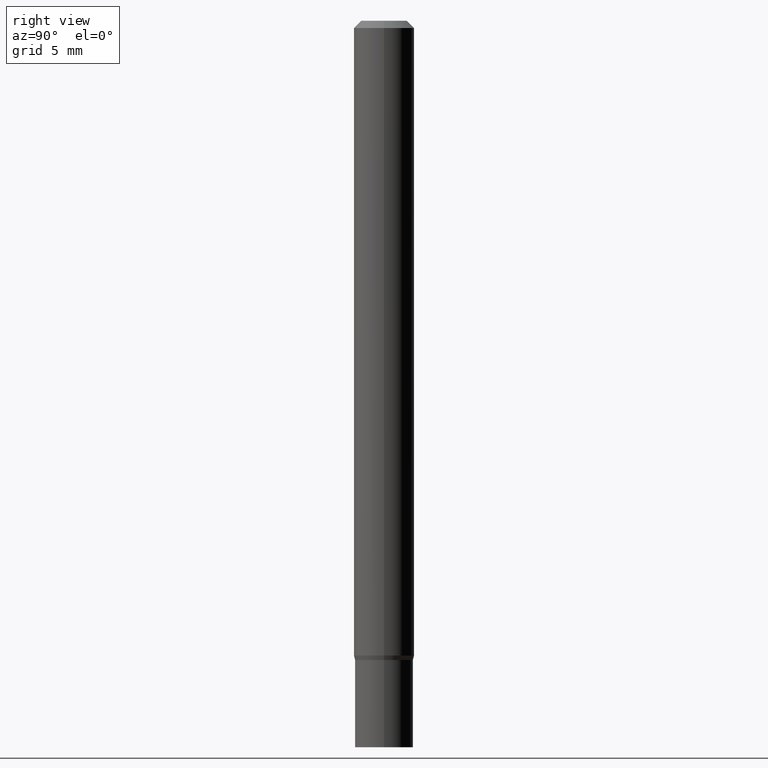
[diagram: clean part render]
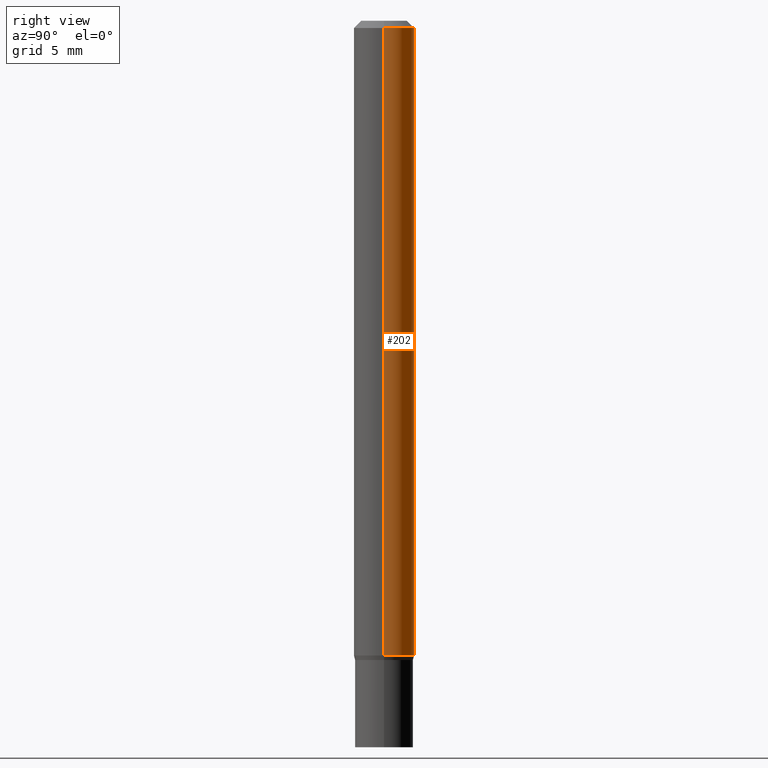
[diagram: same view with one face highlighted and labeled with its STEP entity id]
A machine part, right view. The second image highlights one B-rep face of the part: STEP entity #202.
In plain terms, the highlighted cylindrical surface (edge-blend (fillet) strip) has radius 1.5875 mm, axis along (-0, 0, 1).
Its self-contained STEP definition (entity closure, byte-faithful):
#10 = AXIS2_PLACEMENT_3D ( 'NONE', #438, #114, #263 ) ;
#39 = VECTOR ( 'NONE', #411, 39.37007874015748143 ) ;
#50 = CYLINDRICAL_SURFACE ( 'NONE', #294, 0.06250000000000000000 ) ;
#59 = EDGE_CURVE ( 'NONE', #363, #117, #364, .T. ) ;
#61 = CARTESIAN_POINT ( 'NONE',  ( 0.06250000000000000000, -5.012614570252739972E-15, -1.310669872981077733 ) ) ;
#62 = AXIS2_PLACEMENT_3D ( 'NONE', #274, #280, #232 ) ;
#77 = DIRECTION ( 'NONE',  ( -2.445468806185136877E-29, 3.491481338843145188E-15, 1.000000000000000000 ) ) ;
#114 = DIRECTION ( 'NONE',  ( -2.445468806185136597E-29, 3.491481338843145583E-15, 1.000000000000000000 ) ) ;
#117 = VERTEX_POINT ( 'NONE', #344 ) ;
#129 = LINE ( 'NONE', #132, #39 ) ;
#132 = CARTESIAN_POINT ( 'NONE',  ( 0.06250000000000000000, -4.364351673553916694E-16, 3.047610484872459871E-30 ) ) ;
#138 = LINE ( 'NONE', #424, #410 ) ;
#159 = EDGE_CURVE ( 'NONE', #361, #363, #129, .T. ) ;
#172 = CARTESIAN_POINT ( 'NONE',  ( 0.06250000000000000000, -4.888073874380388472E-16, -0.01499999999999999944 ) ) ;
#175 = EDGE_CURVE ( 'NONE', #361, #337, #357, .T. ) ;
#202 = ADVANCED_FACE ( 'NONE', ( #241 ), #50, .T. ) ;
#232 = DIRECTION ( 'NONE',  ( 1.000000000000000000, -6.982962677686262766E-15, 0.000000000000000000 ) ) ;
#241 = FACE_OUTER_BOUND ( 'NONE', #418, .T. ) ;
#263 = DIRECTION ( 'NONE',  ( 1.000000000000000000, -6.982962677686266711E-15, 0.000000000000000000 ) ) ;
#274 = CARTESIAN_POINT ( 'NONE',  ( 3.205202289581861151E-29, -4.576179402897349091E-15, -1.310669872981077733 ) ) ;
#275 = ORIENTED_EDGE ( 'NONE', *, *, #159, .F. ) ;
#280 = DIRECTION ( 'NONE',  ( -2.445468806185136597E-29, 3.491481338843145583E-15, 1.000000000000000000 ) ) ;
#294 = AXIS2_PLACEMENT_3D ( 'NONE', #384, #379, #349 ) ;
#330 = ORIENTED_EDGE ( 'NONE', *, *, #407, .T. ) ;
#337 = VERTEX_POINT ( 'NONE', #429 ) ;
#344 = CARTESIAN_POINT ( 'NONE',  ( -0.06250000000000000000, -1.870186601639935272E-15, -0.01499999999999999944 ) ) ;
#349 = DIRECTION ( 'NONE',  ( 1.000000000000000000, -6.982962677686266711E-15, 4.876176775795935793E-29 ) ) ;
#350 = ORIENTED_EDGE ( 'NONE', *, *, #59, .F. ) ;
#357 = CIRCLE ( 'NONE', #62, 0.06250000000000000000 ) ;
#361 = VERTEX_POINT ( 'NONE', #61 ) ;
#363 = VERTEX_POINT ( 'NONE', #172 ) ;
#364 = CIRCLE ( 'NONE', #10, 0.06250000000000000000 ) ;
#379 = DIRECTION ( 'NONE',  ( -2.445468806185136597E-29, 3.491481338843145583E-15, 1.000000000000000000 ) ) ;
#381 = ORIENTED_EDGE ( 'NONE', *, *, #175, .T. ) ;
#384 = CARTESIAN_POINT ( 'NONE',  ( 0.000000000000000000, 0.000000000000000000, 0.000000000000000000 ) ) ;
#407 = EDGE_CURVE ( 'NONE', #337, #117, #138, .T. ) ;
#410 = VECTOR ( 'NONE', #77, 39.37007874015748143 ) ;
#411 = DIRECTION ( 'NONE',  ( -2.445468806185136877E-29, 3.491481338843145188E-15, 1.000000000000000000 ) ) ;
#418 = EDGE_LOOP ( 'NONE', ( #381, #330, #350, #275 ) ) ;
#424 = CARTESIAN_POINT ( 'NONE',  ( -0.06250000000000000000, 4.440892098500626162E-16, -3.074334431409316114E-30 ) ) ;
#429 = CARTESIAN_POINT ( 'NONE',  ( -0.06250000000000000000, -4.132090193047286475E-15, -1.310669872981077733 ) ) ;
#438 = CARTESIAN_POINT ( 'NONE',  ( 3.668203209277705088E-31, -5.237222008264718399E-17, -0.01499999999999999944 ) ) ;